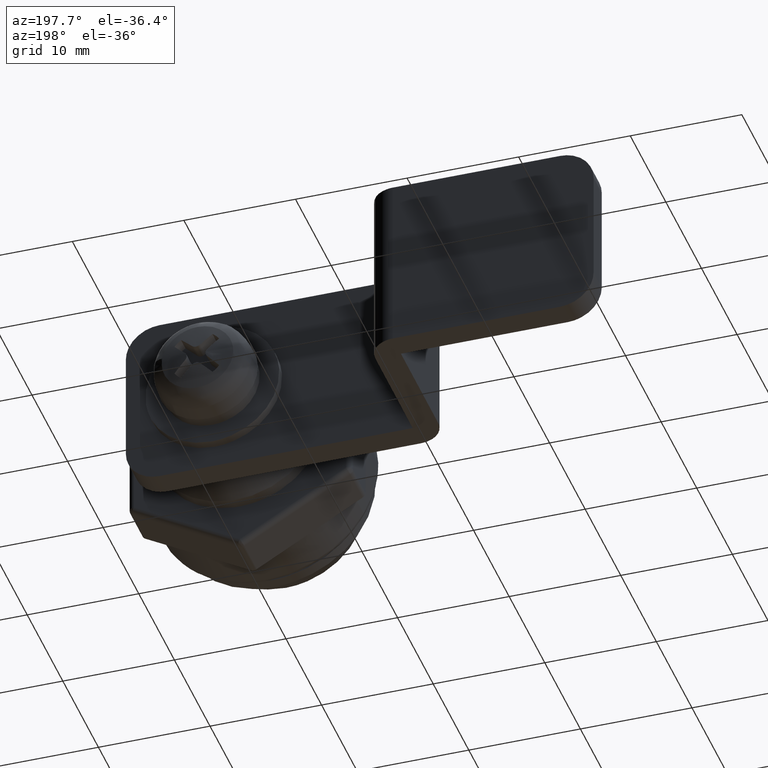
[diagram: clean part render]
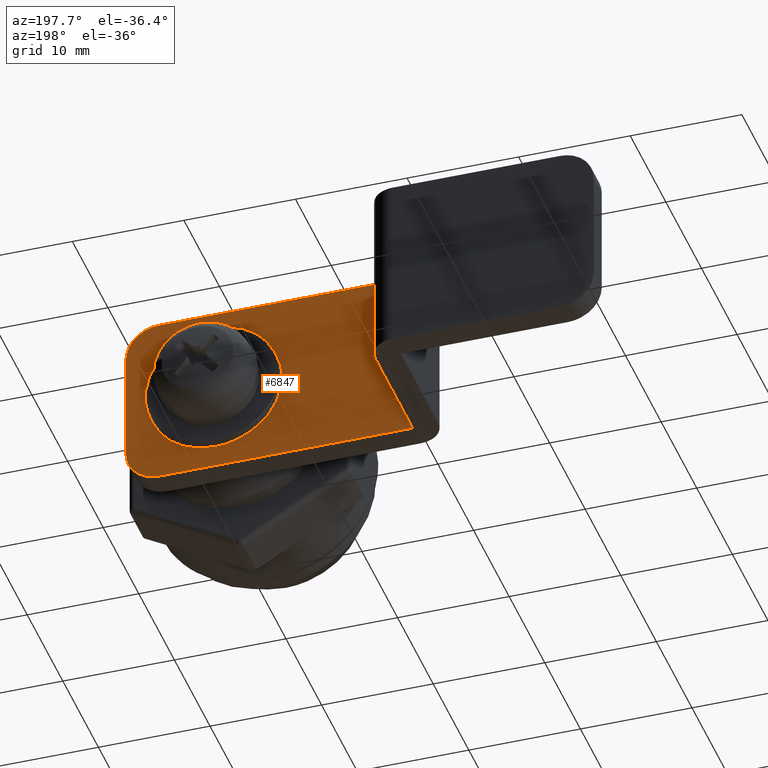
[diagram: same view with one face highlighted and labeled with its STEP entity id]
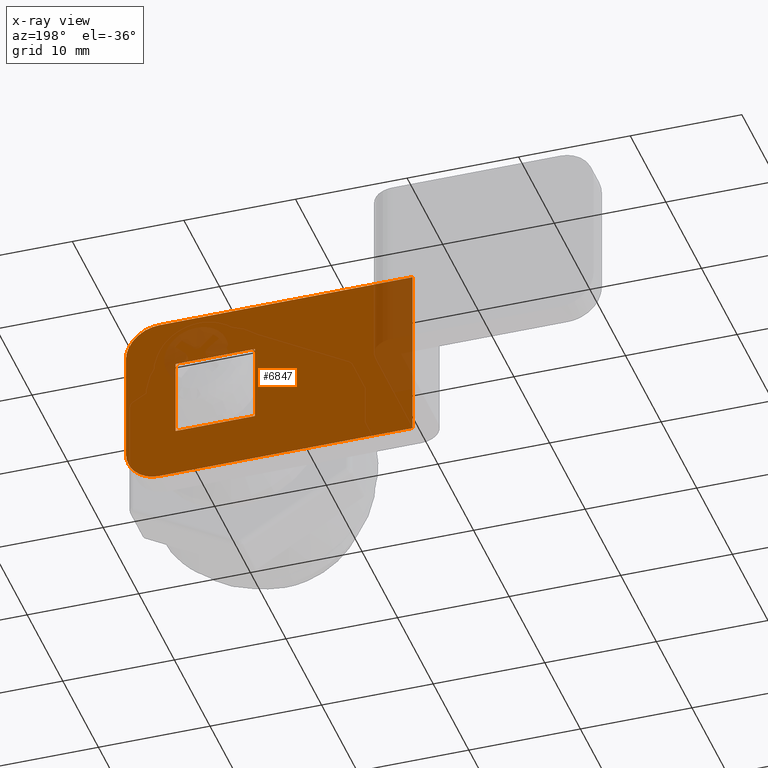
[diagram: x-ray of the same camera — body ghosted, the highlighted face saturated]
A machine part, auxiliary view. The second image highlights one B-rep face of the part: STEP entity #6847.
The next image is the same camera in x-ray: the body ghosted, the highlighted face saturated — about 14% of this face is hidden behind the body in this view.
In plain terms, the highlighted face is a freeform B-spline surface patch.
Its self-contained STEP definition (entity closure, byte-faithful):
#6345=CARTESIAN_POINT('',(5.0,19.899999999999999,8.0));
#6346=VERTEX_POINT('',#6345);
#6347=CARTESIAN_POINT('',(8.0,19.899999999999999,5.0));
#6348=VERTEX_POINT('',#6347);
#6349=CARTESIAN_POINT('',(5.0,19.899999999999999,8.0));
#6350=CARTESIAN_POINT('',(8.0,19.900000000000006,8.0));
#6351=CARTESIAN_POINT('',(8.0,19.899999999999999,5.0));
#6359=(BOUNDED_CURVE()B_SPLINE_CURVE(2,(#6349,#6350,#6351),.UNSPECIFIED.,.F.,.U.)CURVE()GEOMETRIC_REPRESENTATION_ITEM()QUASI_UNIFORM_CURVE()RATIONAL_B_SPLINE_CURVE((1.0,0.707106781186548,1.0))REPRESENTATION_ITEM(''));
#6360=EDGE_CURVE('',#6346,#6348,#6359,.T.);
#6406=CARTESIAN_POINT('',(8.0,19.899999999999999,-5.0));
#6407=VERTEX_POINT('',#6406);
#6408=CARTESIAN_POINT('',(5.0,19.899999999999999,-8.0));
#6409=VERTEX_POINT('',#6408);
#6410=CARTESIAN_POINT('',(8.0,19.899999999999999,-5.0));
#6411=CARTESIAN_POINT('',(8.0,19.900000000000006,-8.0));
#6412=CARTESIAN_POINT('',(5.0,19.899999999999999,-8.0));
#6420=(BOUNDED_CURVE()B_SPLINE_CURVE(2,(#6410,#6411,#6412),.UNSPECIFIED.,.F.,.U.)CURVE()GEOMETRIC_REPRESENTATION_ITEM()QUASI_UNIFORM_CURVE()RATIONAL_B_SPLINE_CURVE((1.0,0.707106781186548,1.0))REPRESENTATION_ITEM(''));
#6421=EDGE_CURVE('',#6407,#6409,#6420,.T.);
#6667=CARTESIAN_POINT('',(-17.699999999999999,19.899999999999999,8.0));
#6668=VERTEX_POINT('',#6667);
#6674=CARTESIAN_POINT('',(-17.699999988079050,19.899999999999999,-8.0));
#6675=VERTEX_POINT('',#6674);
#6676=CARTESIAN_POINT('',(-17.699999999999999,19.899999999999999,8.0));
#6677=CARTESIAN_POINT('',(-17.699999988079050,19.899999999999999,-8.0));
#6678=QUASI_UNIFORM_CURVE('',1,(#6676,#6677),.UNSPECIFIED.,.F.,.U.);
#6679=EDGE_CURVE('',#6668,#6675,#6678,.T.);
#6792=CARTESIAN_POINT('',(-18.983715915201259,19.899999999999999,8.799199968988896));
#6793=CARTESIAN_POINT('',(9.283715685425356,19.899999999999999,8.799199968988896));
#6794=CARTESIAN_POINT('',(-18.983715915201259,19.899999999999999,-8.799200398142338));
#6795=CARTESIAN_POINT('',(9.283715685425356,19.899999999999999,-8.799200398142338));
#6796=B_SPLINE_SURFACE_WITH_KNOTS('',1,1,((#6792,#6794),(#6793,#6795)),.UNSPECIFIED.,.F.,.F.,.U.,(2,2),(2,2),(0.0,28.267431600626619),(0.0,17.598400367131230),.UNSPECIFIED.);
#6797=CARTESIAN_POINT('',(8.0,19.899999999999999,5.0));
#6798=CARTESIAN_POINT('',(8.0,19.899999999999999,-5.0));
#6799=QUASI_UNIFORM_CURVE('',1,(#6797,#6798),.UNSPECIFIED.,.F.,.U.);
#6800=EDGE_CURVE('',#6348,#6407,#6799,.T.);
#6801=ORIENTED_EDGE('',*,*,#6800,.T.);
#6802=ORIENTED_EDGE('',*,*,#6421,.T.);
#6803=CARTESIAN_POINT('',(5.0,19.899999999999999,-8.0));
#6804=CARTESIAN_POINT('',(-17.699999988079050,19.899999999999999,-8.0));
#6805=QUASI_UNIFORM_CURVE('',1,(#6803,#6804),.UNSPECIFIED.,.F.,.U.);
#6806=EDGE_CURVE('',#6409,#6675,#6805,.T.);
#6807=ORIENTED_EDGE('',*,*,#6806,.T.);
#6808=ORIENTED_EDGE('',*,*,#6679,.F.);
#6809=CARTESIAN_POINT('',(-17.699999999999999,19.899999999999999,8.0));
#6810=CARTESIAN_POINT('',(5.0,19.899999999999999,8.0));
#6811=QUASI_UNIFORM_CURVE('',1,(#6809,#6810),.UNSPECIFIED.,.F.,.U.);
#6812=EDGE_CURVE('',#6668,#6346,#6811,.T.);
#6813=ORIENTED_EDGE('',*,*,#6812,.T.);
#6814=ORIENTED_EDGE('',*,*,#6360,.T.);
#6815=EDGE_LOOP('',(#6801,#6802,#6807,#6808,#6813,#6814));
#6816=FACE_OUTER_BOUND('',#6815,.T.);
#6817=CARTESIAN_POINT('',(3.550000000000000,19.899999999999999,3.550000000000000));
#6818=VERTEX_POINT('',#6817);
#6819=CARTESIAN_POINT('',(3.550000000000000,19.899999999999999,-3.550000000000000));
#6820=VERTEX_POINT('',#6819);
#6821=CARTESIAN_POINT('',(3.550000000000000,19.899999999999999,3.550000000000000));
#6822=CARTESIAN_POINT('',(3.550000000000000,19.899999999999999,-3.550000000000000));
#6823=QUASI_UNIFORM_CURVE('',1,(#6821,#6822),.UNSPECIFIED.,.F.,.U.);
#6824=EDGE_CURVE('',#6818,#6820,#6823,.T.);
#6825=ORIENTED_EDGE('',*,*,#6824,.F.);
#6826=CARTESIAN_POINT('',(-3.550000000000000,19.899999999999999,3.550000000000000));
#6827=VERTEX_POINT('',#6826);
#6828=CARTESIAN_POINT('',(-3.550000000000000,19.899999999999999,3.550000000000000));
#6829=CARTESIAN_POINT('',(3.550000000000000,19.899999999999999,3.550000000000000));
#6830=QUASI_UNIFORM_CURVE('',1,(#6828,#6829),.UNSPECIFIED.,.F.,.U.);
#6831=EDGE_CURVE('',#6827,#6818,#6830,.T.);
#6832=ORIENTED_EDGE('',*,*,#6831,.F.);
#6833=CARTESIAN_POINT('',(-3.550000000000000,19.899999999999999,-3.550000000000000));
#6834=VERTEX_POINT('',#6833);
#6835=CARTESIAN_POINT('',(-3.550000000000000,19.899999999999999,-3.550000000000000));
#6836=CARTESIAN_POINT('',(-3.550000000000000,19.899999999999999,3.550000000000000));
#6837=QUASI_UNIFORM_CURVE('',1,(#6835,#6836),.UNSPECIFIED.,.F.,.U.);
#6838=EDGE_CURVE('',#6834,#6827,#6837,.T.);
#6839=ORIENTED_EDGE('',*,*,#6838,.F.);
#6840=CARTESIAN_POINT('',(3.550000000000000,19.899999999999999,-3.550000000000000));
#6841=CARTESIAN_POINT('',(-3.550000000000000,19.899999999999999,-3.550000000000000));
#6842=QUASI_UNIFORM_CURVE('',1,(#6840,#6841),.UNSPECIFIED.,.F.,.U.);
#6843=EDGE_CURVE('',#6820,#6834,#6842,.T.);
#6844=ORIENTED_EDGE('',*,*,#6843,.F.);
#6845=EDGE_LOOP('',(#6825,#6832,#6839,#6844));
#6846=FACE_BOUND('',#6845,.T.);
#6847=ADVANCED_FACE('',(#6816,#6846),#6796,.T.);